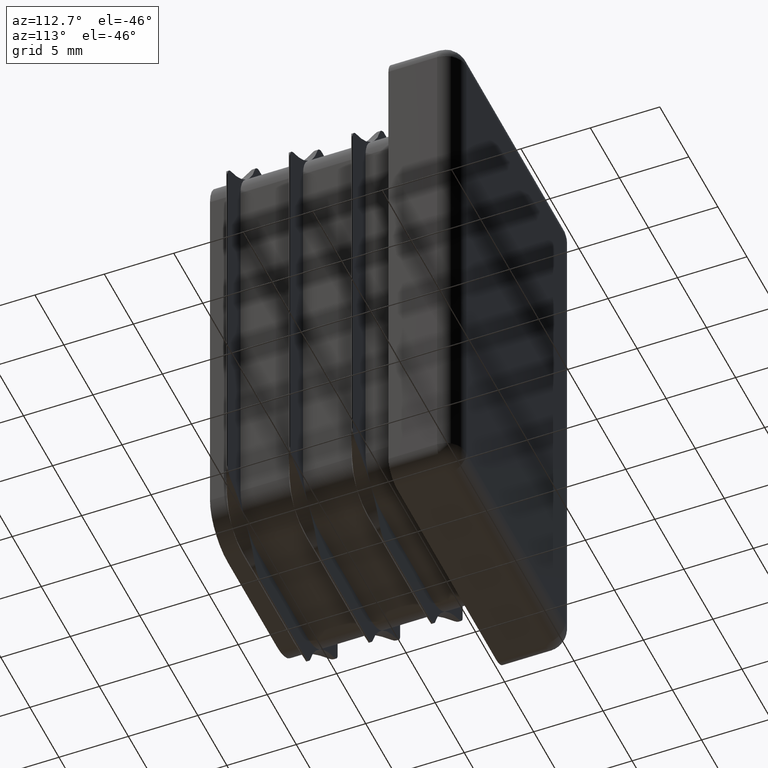
[diagram: clean part render]
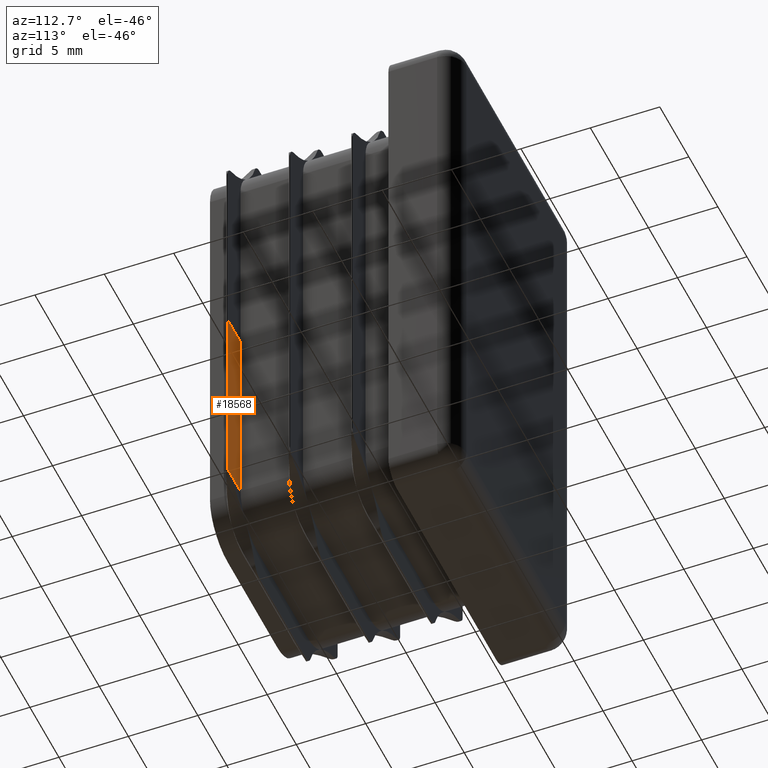
[diagram: same view with one face highlighted and labeled with its STEP entity id]
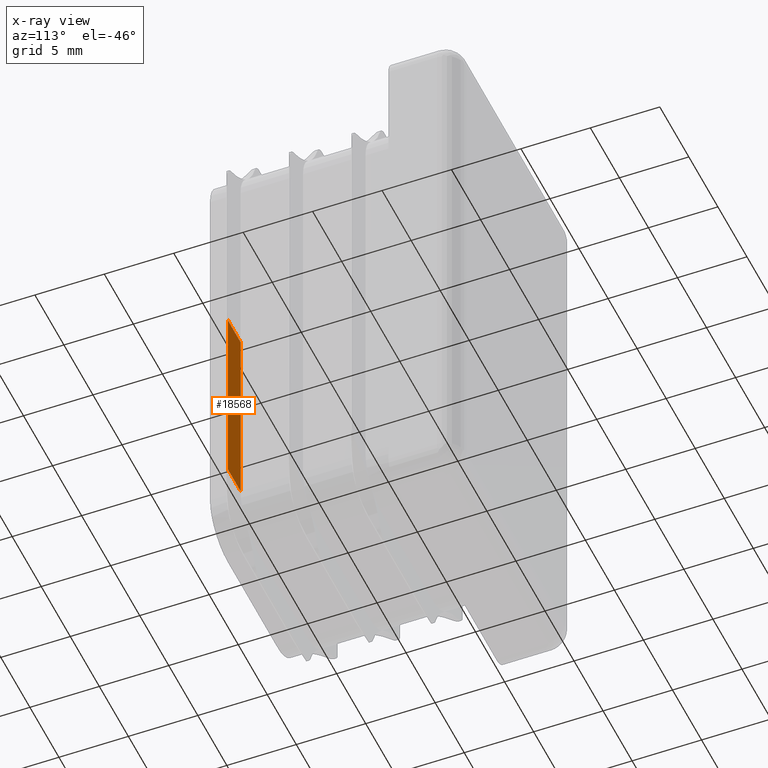
[diagram: x-ray of the same camera — body ghosted, the highlighted face saturated]
A machine part, auxiliary view. The second image highlights one B-rep face of the part: STEP entity #18568.
The next image is the same camera in x-ray: the body ghosted, the highlighted face saturated — about 0% of this face is hidden behind the body in this view.
In plain terms, the highlighted planar face has unit normal (0, -1, -0).
Its self-contained STEP definition (entity closure, byte-faithful):
#7 = VERTEX_POINT ( 'NONE', #6318 ) ;
#113 = LINE ( 'NONE', #9180, #4440 ) ;
#1082 = VERTEX_POINT ( 'NONE', #13848 ) ;
#1772 = LINE ( 'NONE', #5702, #6355 ) ;
#2215 = EDGE_CURVE ( 'NONE', #14203, #8734, #16100, .T. ) ;
#2966 = CARTESIAN_POINT ( 'NONE',  ( 7.250000000000098588, -11.79999999999999716, -14.24999999999999645 ) ) ;
#3104 = CARTESIAN_POINT ( 'NONE',  ( 9.450000000000098765, -11.79999999999999716, 0.000000000000000000 ) ) ;
#3158 = DIRECTION ( 'NONE',  ( -1.000000000000000000, 0.000000000000000000, 0.000000000000000000 ) ) ;
#3399 = DIRECTION ( 'NONE',  ( 2.739037067331800623E-16, 0.000000000000000000, -1.000000000000000000 ) ) ;
#4230 = DIRECTION ( 'NONE',  ( -2.081668171172170407E-14, 0.000000000000000000, -1.000000000000000000 ) ) ;
#4311 = CARTESIAN_POINT ( 'NONE',  ( 9.409810287201457513, -11.79999999999999893, -14.24999999999999645 ) ) ;
#4440 = VECTOR ( 'NONE', #3399, 1000.000000000000000 ) ;
#5702 = CARTESIAN_POINT ( 'NONE',  ( 7.250000000000094147, -11.79999999999999716, 0.000000000000000000 ) ) ;
#5836 = CARTESIAN_POINT ( 'NONE',  ( 8.500000000000101252, -11.79999999999999893, -13.83497561360495354 ) ) ;
#6318 = CARTESIAN_POINT ( 'NONE',  ( 9.450000000000102318, -11.79999999999999893, -14.14722551352486590 ) ) ;
#6355 = VECTOR ( 'NONE', #7231, 1000.000000000000000 ) ;
#6522 = CIRCLE ( 'NONE', #12897, 0.9999999999999991118 ) ;
#6650 = EDGE_CURVE ( 'NONE', #1082, #8734, #1772, .T. ) ;
#7231 = DIRECTION ( 'NONE',  ( 2.739037067331800623E-16, 0.000000000000000000, -1.000000000000000000 ) ) ;
#7466 = DIRECTION ( 'NONE',  ( -1.000000000000000000, 0.000000000000000000, 0.000000000000000000 ) ) ;
#7587 = PLANE ( 'NONE',  #18399 ) ;
#8512 = ORIENTED_EDGE ( 'NONE', *, *, #18641, .F. ) ;
#8734 = VERTEX_POINT ( 'NONE', #15714 ) ;
#8952 = DIRECTION ( 'NONE',  ( 0.000000000000000000, 0.000000000000000000, -1.000000000000000000 ) ) ;
#9180 = CARTESIAN_POINT ( 'NONE',  ( 9.450000000000098765, -11.79999999999999716, 0.000000000000000000 ) ) ;
#9689 = FACE_OUTER_BOUND ( 'NONE', #10329, .T. ) ;
#10329 = EDGE_LOOP ( 'NONE', ( #14646, #15183, #16624, #17497, #8512 ) ) ;
#10364 = EDGE_CURVE ( 'NONE', #7, #14203, #6522, .T. ) ;
#10373 = CARTESIAN_POINT ( 'NONE',  ( 7.250000000000094147, -11.79999999999999716, 0.000000000000000000 ) ) ;
#11532 = LINE ( 'NONE', #14944, #12677 ) ;
#11563 = DIRECTION ( 'NONE',  ( 0.000000000000000000, 1.000000000000000000, 0.000000000000000000 ) ) ;
#11786 = DIRECTION ( 'NONE',  ( 0.000000000000000000, -1.000000000000000000, -0.000000000000000000 ) ) ;
#12677 = VECTOR ( 'NONE', #7466, 1000.000000000000000 ) ;
#12897 = AXIS2_PLACEMENT_3D ( 'NONE', #5836, #11563, #4230 ) ;
#12969 = VERTEX_POINT ( 'NONE', #3104 ) ;
#13848 = CARTESIAN_POINT ( 'NONE',  ( 7.250000000000001776, -11.79999999999999716, 0.000000000000000000 ) ) ;
#14203 = VERTEX_POINT ( 'NONE', #4311 ) ;
#14646 = ORIENTED_EDGE ( 'NONE', *, *, #16150, .T. ) ;
#14944 = CARTESIAN_POINT ( 'NONE',  ( 7.250000000000094147, -11.79999999999999716, 0.000000000000000000 ) ) ;
#15183 = ORIENTED_EDGE ( 'NONE', *, *, #10364, .T. ) ;
#15714 = CARTESIAN_POINT ( 'NONE',  ( 7.250000000000005329, -11.79999999999999716, -14.24999999999999822 ) ) ;
#16100 = LINE ( 'NONE', #2966, #17021 ) ;
#16150 = EDGE_CURVE ( 'NONE', #12969, #7, #113, .T. ) ;
#16624 = ORIENTED_EDGE ( 'NONE', *, *, #2215, .T. ) ;
#17021 = VECTOR ( 'NONE', #3158, 1000.000000000000000 ) ;
#17497 = ORIENTED_EDGE ( 'NONE', *, *, #6650, .F. ) ;
#18399 = AXIS2_PLACEMENT_3D ( 'NONE', #10373, #11786, #8952 ) ;
#18568 = ADVANCED_FACE ( 'NONE', ( #9689 ), #7587, .F. ) ;
#18641 = EDGE_CURVE ( 'NONE', #12969, #1082, #11532, .T. ) ;